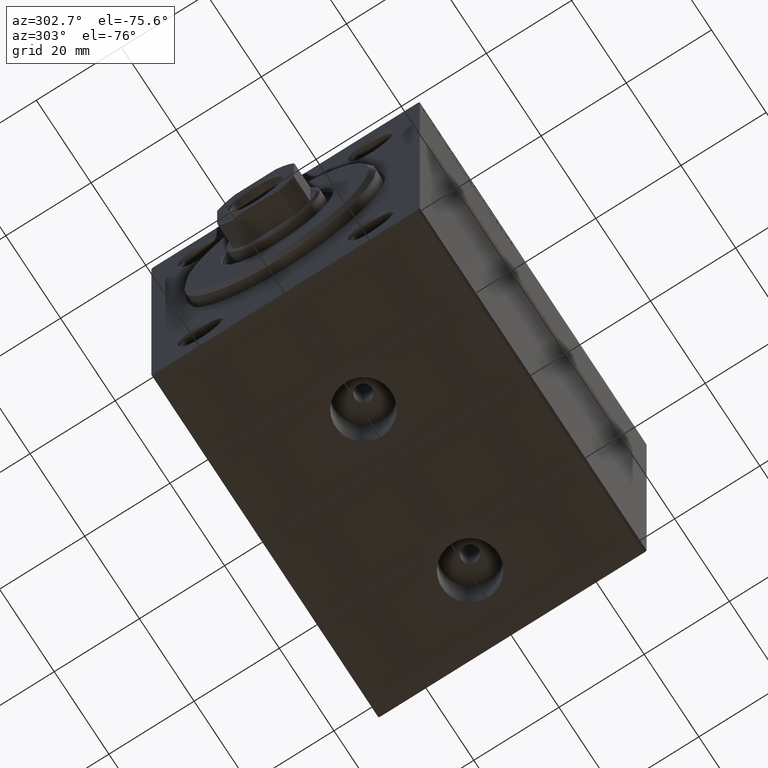
[diagram: clean part render]
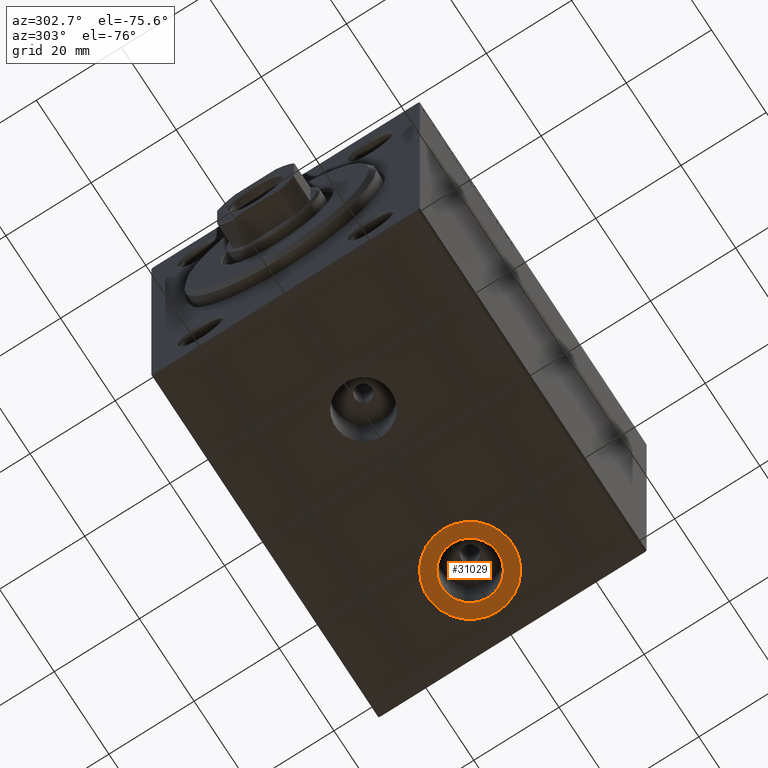
[diagram: same view with one face highlighted and labeled with its STEP entity id]
A machine part, auxiliary view. The second image highlights one B-rep face of the part: STEP entity #31029.
In plain terms, the highlighted planar face has unit normal (0, 0, -1).
Its self-contained STEP definition (entity closure, byte-faithful):
#1772 = FACE_BOUND ( 'NONE', #9052, .T. ) ;
#1918 = EDGE_CURVE ( 'NONE', #14532, #10069, #23214, .T. ) ;
#3204 = DIRECTION ( 'NONE',  ( -1.000000000000000000, 0.000000000000000000, 0.000000000000000000 ) ) ;
#5560 = ORIENTED_EDGE ( 'NONE', *, *, #27635, .F. ) ;
#5949 = EDGE_CURVE ( 'NONE', #10989, #14142, #40168, .T. ) ;
#5953 = DIRECTION ( 'NONE',  ( 0.000000000000000000, 0.000000000000000000, -1.000000000000000000 ) ) ;
#7445 = CARTESIAN_POINT ( 'NONE',  ( 67.50000000000000000, -7.523326685254106813E-15, -42.40000000000000568 ) ) ;
#9052 = EDGE_LOOP ( 'NONE', ( #5560, #33220 ) ) ;
#10069 = VERTEX_POINT ( 'NONE', #26401 ) ;
#10716 = DIRECTION ( 'NONE',  ( -1.000000000000000000, 0.000000000000000000, 0.000000000000000000 ) ) ;
#10758 = EDGE_LOOP ( 'NONE', ( #36220, #34387 ) ) ;
#10989 = VERTEX_POINT ( 'NONE', #32028 ) ;
#11357 = CIRCLE ( 'NONE', #26755, 6.580000000000002736 ) ;
#11753 = CARTESIAN_POINT ( 'NONE',  ( 67.50000000000000000, -7.523326685254106813E-15, -42.40000000000000568 ) ) ;
#12306 = DIRECTION ( 'NONE',  ( 0.000000000000000000, 0.000000000000000000, -1.000000000000000000 ) ) ;
#13543 = DIRECTION ( 'NONE',  ( 0.000000000000000000, 0.000000000000000000, -1.000000000000000000 ) ) ;
#14142 = VERTEX_POINT ( 'NONE', #14374 ) ;
#14374 = CARTESIAN_POINT ( 'NONE',  ( 60.92000000000000171, -7.523326685254106813E-15, -42.40000000000000568 ) ) ;
#14532 = VERTEX_POINT ( 'NONE', #17768 ) ;
#17065 = AXIS2_PLACEMENT_3D ( 'NONE', #21514, #13543, #10716 ) ;
#17284 = CARTESIAN_POINT ( 'NONE',  ( 67.50000000000000000, -7.523326685254106813E-15, -42.40000000000000568 ) ) ;
#17768 = CARTESIAN_POINT ( 'NONE',  ( 57.50000000000000000, -7.523326685254106813E-15, -42.40000000000000568 ) ) ;
#19420 = FACE_OUTER_BOUND ( 'NONE', #10758, .T. ) ;
#20263 = DIRECTION ( 'NONE',  ( -1.000000000000000000, 0.000000000000000000, -0.000000000000000000 ) ) ;
#21446 = DIRECTION ( 'NONE',  ( 0.000000000000000000, 0.000000000000000000, -1.000000000000000000 ) ) ;
#21514 = CARTESIAN_POINT ( 'NONE',  ( 67.50000000000000000, -7.523326685254106813E-15, -42.40000000000000568 ) ) ;
#22179 = EDGE_CURVE ( 'NONE', #10069, #14532, #44199, .T. ) ;
#23214 = CIRCLE ( 'NONE', #24689, 10.00000000000000178 ) ;
#24689 = AXIS2_PLACEMENT_3D ( 'NONE', #11753, #37155, #44266 ) ;
#26254 = AXIS2_PLACEMENT_3D ( 'NONE', #7445, #21446, #36580 ) ;
#26401 = CARTESIAN_POINT ( 'NONE',  ( 77.50000000000000000, -6.298679886106752176E-15, -42.40000000000000568 ) ) ;
#26755 = AXIS2_PLACEMENT_3D ( 'NONE', #31210, #5953, #3204 ) ;
#27635 = EDGE_CURVE ( 'NONE', #14142, #10989, #11357, .T. ) ;
#31029 = ADVANCED_FACE ( 'NONE', ( #1772, #19420 ), #34068, .T. ) ;
#31210 = CARTESIAN_POINT ( 'NONE',  ( 67.50000000000000000, -7.523326685254106813E-15, -42.40000000000000568 ) ) ;
#32028 = CARTESIAN_POINT ( 'NONE',  ( 74.08000000000001251, -6.717509091415147771E-15, -42.40000000000000568 ) ) ;
#33220 = ORIENTED_EDGE ( 'NONE', *, *, #5949, .F. ) ;
#34068 = PLANE ( 'NONE',  #38018 ) ;
#34387 = ORIENTED_EDGE ( 'NONE', *, *, #22179, .T. ) ;
#36220 = ORIENTED_EDGE ( 'NONE', *, *, #1918, .T. ) ;
#36580 = DIRECTION ( 'NONE',  ( -1.000000000000000000, 0.000000000000000000, 0.000000000000000000 ) ) ;
#37155 = DIRECTION ( 'NONE',  ( 0.000000000000000000, 0.000000000000000000, -1.000000000000000000 ) ) ;
#38018 = AXIS2_PLACEMENT_3D ( 'NONE', #17284, #12306, #20263 ) ;
#40168 = CIRCLE ( 'NONE', #26254, 6.580000000000002736 ) ;
#44199 = CIRCLE ( 'NONE', #17065, 10.00000000000000178 ) ;
#44266 = DIRECTION ( 'NONE',  ( -1.000000000000000000, 0.000000000000000000, 0.000000000000000000 ) ) ;